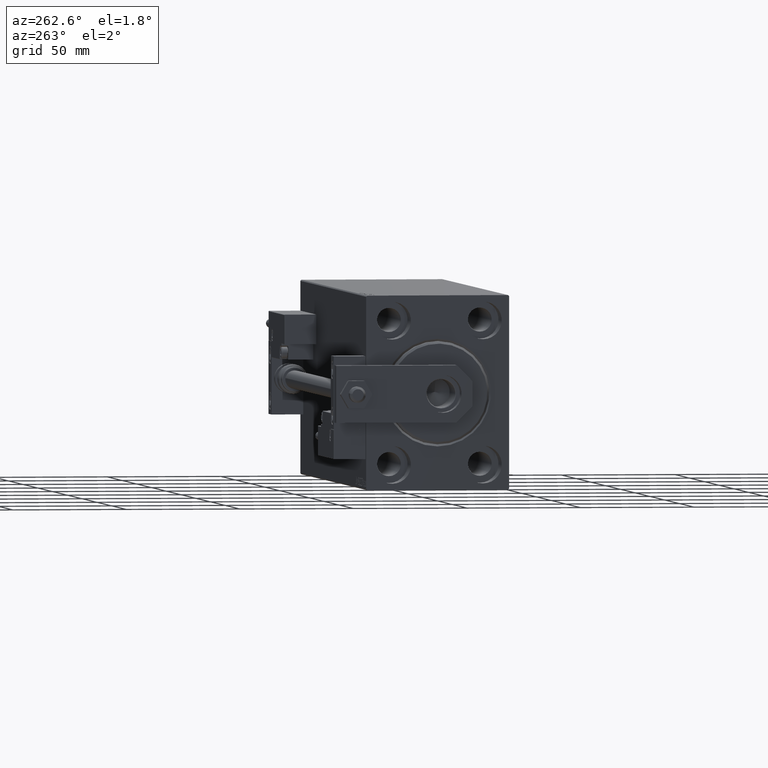
[diagram: clean part render]
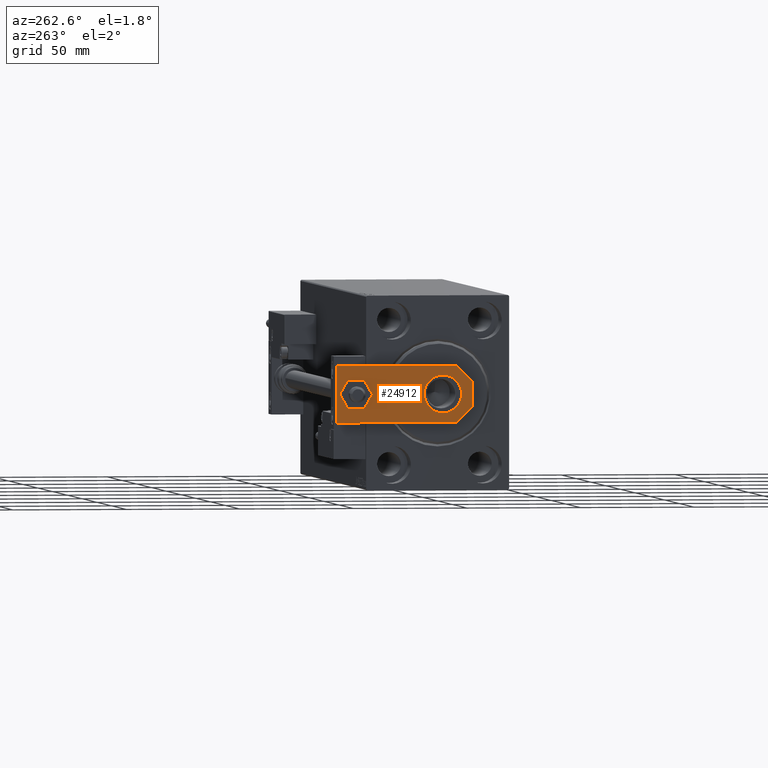
[diagram: same view with one face highlighted and labeled with its STEP entity id]
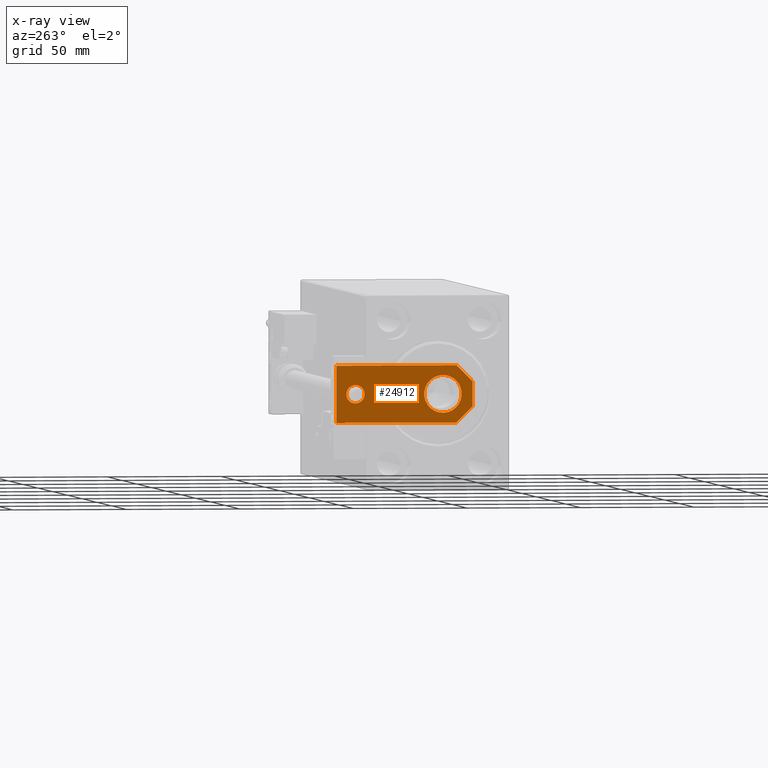
[diagram: x-ray of the same camera — body ghosted, the highlighted face saturated]
A machine part, auxiliary view. The second image highlights one B-rep face of the part: STEP entity #24912.
The next image is the same camera in x-ray: the body ghosted, the highlighted face saturated — about 0% of this face is hidden behind the body in this view.
In plain terms, the highlighted planar face has unit normal (-1, 0, 0).
Its self-contained STEP definition (entity closure, byte-faithful):
#409 = DIRECTION ( 'NONE',  ( 0.7071067811865486830, 0.7071067811865464625, -0.000000000000000000 ) ) ;
#1248 = CARTESIAN_POINT ( 'NONE',  ( 4.000000000000000888, 51.50000000000000000, 6.000000000000000000 ) ) ;
#1992 = ORIENTED_EDGE ( 'NONE', *, *, #36874, .T. ) ;
#3753 = DIRECTION ( 'NONE',  ( 1.000000000000000000, 0.000000000000000000, 0.000000000000000000 ) ) ;
#4715 = LINE ( 'NONE', #16088, #28822 ) ;
#4823 = LINE ( 'NONE', #44267, #11310 ) ;
#5595 = CARTESIAN_POINT ( 'NONE',  ( -2.750000000000013767, -2.750000000000005773, 6.000000000000000000 ) ) ;
#5681 = DIRECTION ( 'NONE',  ( 1.000000000000000000, 0.000000000000000000, 0.000000000000000000 ) ) ;
#5796 = DIRECTION ( 'NONE',  ( -1.000000000000000000, 0.000000000000000000, 0.000000000000000000 ) ) ;
#5930 = DIRECTION ( 'NONE',  ( 0.000000000000000000, 0.000000000000000000, 1.000000000000000000 ) ) ;
#6494 = VECTOR ( 'NONE', #16254, 1000.000000000000000 ) ;
#6817 = CARTESIAN_POINT ( 'NONE',  ( -1.432611055310774642E-16, 51.50000000000000000, 6.000000000000000000 ) ) ;
#7276 = CARTESIAN_POINT ( 'NONE',  ( 0.000000000000000000, 0.000000000000000000, 6.000000000000000000 ) ) ;
#8057 = ORIENTED_EDGE ( 'NONE', *, *, #32977, .F. ) ;
#8256 = EDGE_CURVE ( 'NONE', #19495, #30720, #34748, .T. ) ;
#8442 = EDGE_LOOP ( 'NONE', ( #46914, #17204, #1992, #21264, #15706, #34209 ) ) ;
#8843 = DIRECTION ( 'NONE',  ( 0.000000000000000000, 1.000000000000000000, 0.000000000000000000 ) ) ;
#9254 = CIRCLE ( 'NONE', #42427, 8.250000000000000000 ) ;
#9795 = DIRECTION ( 'NONE',  ( 0.000000000000000000, 0.000000000000000000, 1.000000000000000000 ) ) ;
#10050 = FACE_OUTER_BOUND ( 'NONE', #8442, .T. ) ;
#11310 = VECTOR ( 'NONE', #16688, 1000.000000000000000 ) ;
#12906 = CARTESIAN_POINT ( 'NONE',  ( -4.000000000000000888, 51.50000000000000000, 6.000000000000000000 ) ) ;
#13743 = CARTESIAN_POINT ( 'NONE',  ( -9.629649721936179265E-32, 12.99999999999999822, 6.000000000000000000 ) ) ;
#14254 = AXIS2_PLACEMENT_3D ( 'NONE', #7276, #25758, #26022 ) ;
#14321 = DIRECTION ( 'NONE',  ( 1.000000000000000000, 0.000000000000000000, 0.000000000000000000 ) ) ;
#15469 = ORIENTED_EDGE ( 'NONE', *, *, #30478, .F. ) ;
#15591 = VECTOR ( 'NONE', #8843, 1000.000000000000000 ) ;
#15674 = LINE ( 'NONE', #24528, #15591 ) ;
#15706 = ORIENTED_EDGE ( 'NONE', *, *, #44441, .T. ) ;
#16088 = CARTESIAN_POINT ( 'NONE',  ( 2.749999999999980016, -2.749999999999988010, 6.000000000000000000 ) ) ;
#16254 = DIRECTION ( 'NONE',  ( -8.673617379884035472E-17, -1.000000000000000000, 0.000000000000000000 ) ) ;
#16688 = DIRECTION ( 'NONE',  ( 1.000000000000000000, 0.000000000000000000, 0.000000000000000000 ) ) ;
#17039 = CARTESIAN_POINT ( 'NONE',  ( -5.500000000000010658, 4.814824860968089633E-32, 6.000000000000000000 ) ) ;
#17204 = ORIENTED_EDGE ( 'NONE', *, *, #45836, .T. ) ;
#17835 = VERTEX_POINT ( 'NONE', #34228 ) ;
#18361 = CARTESIAN_POINT ( 'NONE',  ( -12.50000000000000355, 7.000000000000013323, 6.000000000000000000 ) ) ;
#18566 = AXIS2_PLACEMENT_3D ( 'NONE', #13743, #5930, #5681 ) ;
#19495 = VERTEX_POINT ( 'NONE', #20703 ) ;
#19759 = VECTOR ( 'NONE', #49106, 1000.000000000000000 ) ;
#20078 = CIRCLE ( 'NONE', #47598, 4.000000000000000888 ) ;
#20084 = CARTESIAN_POINT ( 'NONE',  ( 12.50000000000000355, 60.00000000000000000, 6.000000000000000000 ) ) ;
#20703 = CARTESIAN_POINT ( 'NONE',  ( -12.49999999999999822, 60.00000000000000000, 6.000000000000000000 ) ) ;
#20983 = EDGE_CURVE ( 'NONE', #33325, #44950, #9254, .T. ) ;
#21219 = VECTOR ( 'NONE', #5796, 1000.000000000000000 ) ;
#21264 = ORIENTED_EDGE ( 'NONE', *, *, #46333, .T. ) ;
#21489 = LINE ( 'NONE', #5595, #19759 ) ;
#22439 = VERTEX_POINT ( 'NONE', #20084 ) ;
#22562 = VERTEX_POINT ( 'NONE', #17039 ) ;
#23294 = CARTESIAN_POINT ( 'NONE',  ( 12.50000000000000355, 7.000000000000006217, 6.000000000000000000 ) ) ;
#24380 = EDGE_LOOP ( 'NONE', ( #49834, #8057 ) ) ;
#24528 = CARTESIAN_POINT ( 'NONE',  ( 12.50000000000000355, 4.814824860968089633E-32, 6.000000000000000000 ) ) ;
#24912 = ADVANCED_FACE ( 'NONE', ( #25260, #10050, #34579 ), #46247, .T. ) ;
#25260 = FACE_BOUND ( 'NONE', #38972, .T. ) ;
#25758 = DIRECTION ( 'NONE',  ( -0.000000000000000000, 0.000000000000000000, 1.000000000000000000 ) ) ;
#26022 = DIRECTION ( 'NONE',  ( 1.000000000000000000, 0.000000000000000000, 0.000000000000000000 ) ) ;
#26677 = CIRCLE ( 'NONE', #18566, 8.250000000000000000 ) ;
#28052 = DIRECTION ( 'NONE',  ( 0.000000000000000000, 0.000000000000000000, 1.000000000000000000 ) ) ;
#28565 = CARTESIAN_POINT ( 'NONE',  ( 12.50000000000000355, 60.00000000000000000, 6.000000000000000000 ) ) ;
#28647 = VERTEX_POINT ( 'NONE', #1248 ) ;
#28822 = VECTOR ( 'NONE', #409, 999.9999999999998863 ) ;
#29966 = AXIS2_PLACEMENT_3D ( 'NONE', #44964, #9795, #14321 ) ;
#30478 = EDGE_CURVE ( 'NONE', #28647, #40663, #20078, .T. ) ;
#30720 = VERTEX_POINT ( 'NONE', #18361 ) ;
#32977 = EDGE_CURVE ( 'NONE', #44950, #33325, #26677, .T. ) ;
#33325 = VERTEX_POINT ( 'NONE', #49886 ) ;
#34209 = ORIENTED_EDGE ( 'NONE', *, *, #43793, .T. ) ;
#34228 = CARTESIAN_POINT ( 'NONE',  ( 5.499999999999976907, 4.814824860968089633E-32, 6.000000000000000000 ) ) ;
#34579 = FACE_BOUND ( 'NONE', #24380, .T. ) ;
#34748 = LINE ( 'NONE', #39298, #6494 ) ;
#36759 = VERTEX_POINT ( 'NONE', #23294 ) ;
#36874 = EDGE_CURVE ( 'NONE', #22562, #17835, #4823, .T. ) ;
#38323 = EDGE_CURVE ( 'NONE', #40663, #28647, #46127, .T. ) ;
#38442 = DIRECTION ( 'NONE',  ( 1.000000000000000000, 0.000000000000000000, 0.000000000000000000 ) ) ;
#38972 = EDGE_LOOP ( 'NONE', ( #43730, #15469 ) ) ;
#39298 = CARTESIAN_POINT ( 'NONE',  ( -12.49999999999999822, 60.00000000000000000, 6.000000000000000000 ) ) ;
#40663 = VERTEX_POINT ( 'NONE', #12906 ) ;
#40946 = LINE ( 'NONE', #28565, #21219 ) ;
#42427 = AXIS2_PLACEMENT_3D ( 'NONE', #43247, #28052, #38442 ) ;
#43247 = CARTESIAN_POINT ( 'NONE',  ( -9.629649721936179265E-32, 12.99999999999999822, 6.000000000000000000 ) ) ;
#43730 = ORIENTED_EDGE ( 'NONE', *, *, #38323, .F. ) ;
#43793 = EDGE_CURVE ( 'NONE', #22439, #19495, #40946, .T. ) ;
#44267 = CARTESIAN_POINT ( 'NONE',  ( -12.50000000000000355, 4.814824860968089633E-32, 6.000000000000000000 ) ) ;
#44441 = EDGE_CURVE ( 'NONE', #36759, #22439, #15674, .T. ) ;
#44950 = VERTEX_POINT ( 'NONE', #49516 ) ;
#44964 = CARTESIAN_POINT ( 'NONE',  ( -1.432611055310774642E-16, 51.50000000000000000, 6.000000000000000000 ) ) ;
#45836 = EDGE_CURVE ( 'NONE', #30720, #22562, #21489, .T. ) ;
#46127 = CIRCLE ( 'NONE', #29966, 4.000000000000000888 ) ;
#46247 = PLANE ( 'NONE',  #14254 ) ;
#46333 = EDGE_CURVE ( 'NONE', #17835, #36759, #4715, .T. ) ;
#46914 = ORIENTED_EDGE ( 'NONE', *, *, #8256, .T. ) ;
#47598 = AXIS2_PLACEMENT_3D ( 'NONE', #6817, #49589, #3753 ) ;
#49106 = DIRECTION ( 'NONE',  ( 0.7071067811865465735, -0.7071067811865485719, 0.000000000000000000 ) ) ;
#49516 = CARTESIAN_POINT ( 'NONE',  ( 8.250000000000000000, 13.00000000000000000, 6.000000000000000000 ) ) ;
#49589 = DIRECTION ( 'NONE',  ( 0.000000000000000000, 0.000000000000000000, 1.000000000000000000 ) ) ;
#49834 = ORIENTED_EDGE ( 'NONE', *, *, #20983, .F. ) ;
#49886 = CARTESIAN_POINT ( 'NONE',  ( -8.250000000000000000, 12.99999999999999822, 6.000000000000000000 ) ) ;